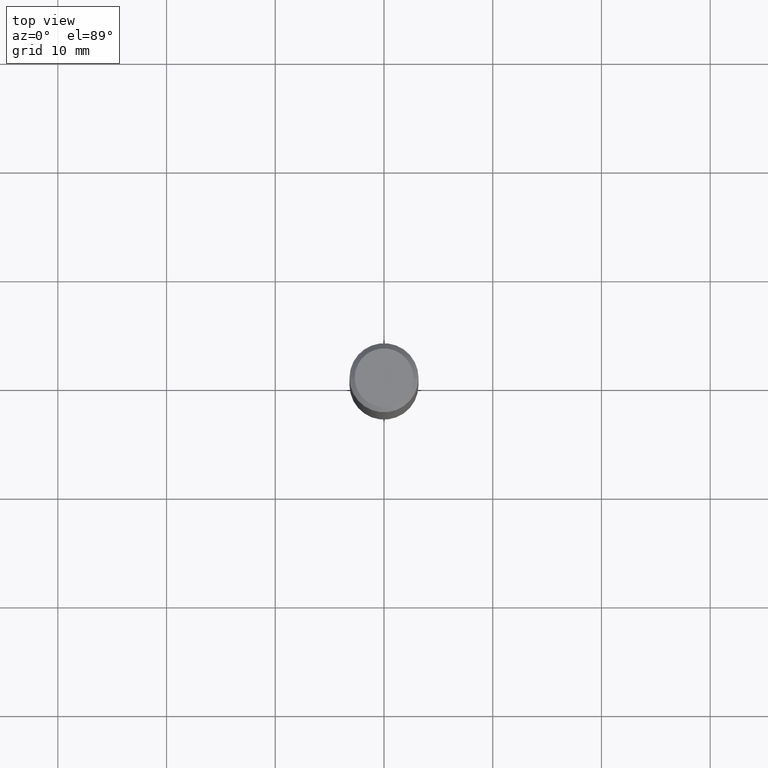
[diagram: clean part render]
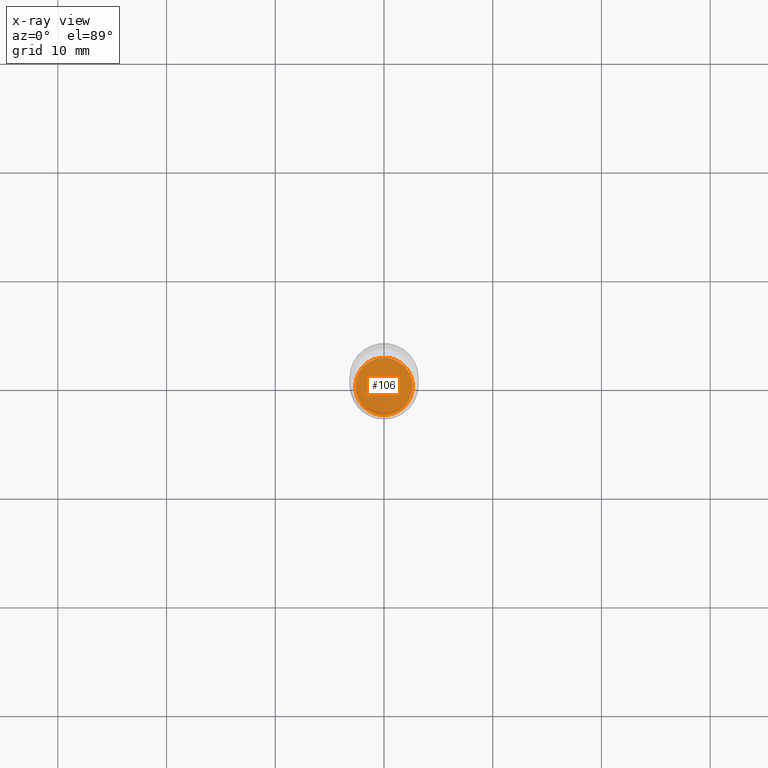
[diagram: x-ray — body ghosted, one internal face saturated and labeled with its STEP entity id]
A machine part, top view, then the same camera in x-ray: the body is ghosted and one INTERNAL B-rep face — a face not visible from any outside direction — is saturated and labeled: STEP entity #106.
In plain terms, the highlighted planar face has unit normal (-0, 0, 1).
Its self-contained STEP definition (entity closure, byte-faithful):
#13 = ORIENTED_EDGE ( 'NONE', *, *, #336, .F. ) ;
#14 = DIRECTION ( 'NONE',  ( -2.438088387897960049E-29, 3.491481338843145188E-15, 1.000000000000000000 ) ) ;
#27 = CARTESIAN_POINT ( 'NONE',  ( 0.1039999999999999813, -7.129604893917701409E-15, -1.834000000000000075 ) ) ;
#59 = DIRECTION ( 'NONE',  ( -2.445468806185136597E-29, 3.491481338843145583E-15, 1.000000000000000000 ) ) ;
#65 = VERTEX_POINT ( 'NONE', #160 ) ;
#84 = AXIS2_PLACEMENT_3D ( 'NONE', #280, #14, #153 ) ;
#95 = EDGE_LOOP ( 'NONE', ( #13, #363 ) ) ;
#106 = ADVANCED_FACE ( 'NONE', ( #389 ), #248, .F. ) ;
#153 = DIRECTION ( 'NONE',  ( 1.000000000000000000, -6.982962677686265922E-15, 4.876176775795935793E-29 ) ) ;
#160 = CARTESIAN_POINT ( 'NONE',  ( -0.1039999999999999813, -5.661763103073714630E-15, -1.834000000000000075 ) ) ;
#174 = CARTESIAN_POINT ( 'NONE',  ( 4.484989790543541016E-29, -6.403376775438329103E-15, -1.834000000000000075 ) ) ;
#214 = DIRECTION ( 'NONE',  ( 1.000000000000000000, -6.982962677686269077E-15, 0.000000000000000000 ) ) ;
#229 = EDGE_CURVE ( 'NONE', #65, #294, #442, .T. ) ;
#248 = PLANE ( 'NONE',  #84 ) ;
#251 = DIRECTION ( 'NONE',  ( 1.000000000000000000, -6.982962677686269077E-15, 0.000000000000000000 ) ) ;
#277 = AXIS2_PLACEMENT_3D ( 'NONE', #409, #59, #214 ) ;
#280 = CARTESIAN_POINT ( 'NONE',  ( 4.484989790543541016E-29, -6.403376775438329103E-15, -1.834000000000000075 ) ) ;
#294 = VERTEX_POINT ( 'NONE', #27 ) ;
#320 = CIRCLE ( 'NONE', #277, 0.1039999999999999813 ) ;
#328 = DIRECTION ( 'NONE',  ( -2.445468806185136597E-29, 3.491481338843145583E-15, 1.000000000000000000 ) ) ;
#336 = EDGE_CURVE ( 'NONE', #294, #65, #320, .T. ) ;
#363 = ORIENTED_EDGE ( 'NONE', *, *, #229, .F. ) ;
#389 = FACE_OUTER_BOUND ( 'NONE', #95, .T. ) ;
#409 = CARTESIAN_POINT ( 'NONE',  ( 4.484989790543541016E-29, -6.403376775438329103E-15, -1.834000000000000075 ) ) ;
#442 = CIRCLE ( 'NONE', #468, 0.1039999999999999813 ) ;
#468 = AXIS2_PLACEMENT_3D ( 'NONE', #174, #328, #251 ) ;